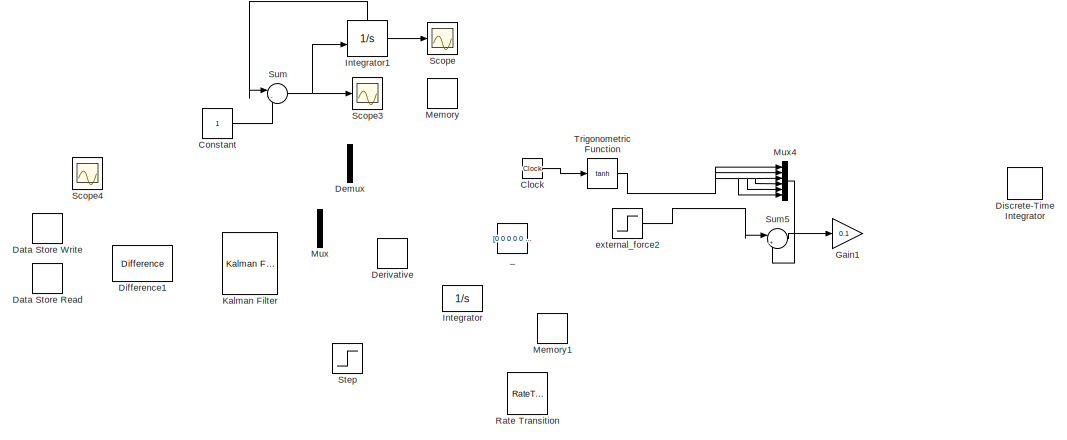
[diagram: root canvas - part 1/3, top right region]
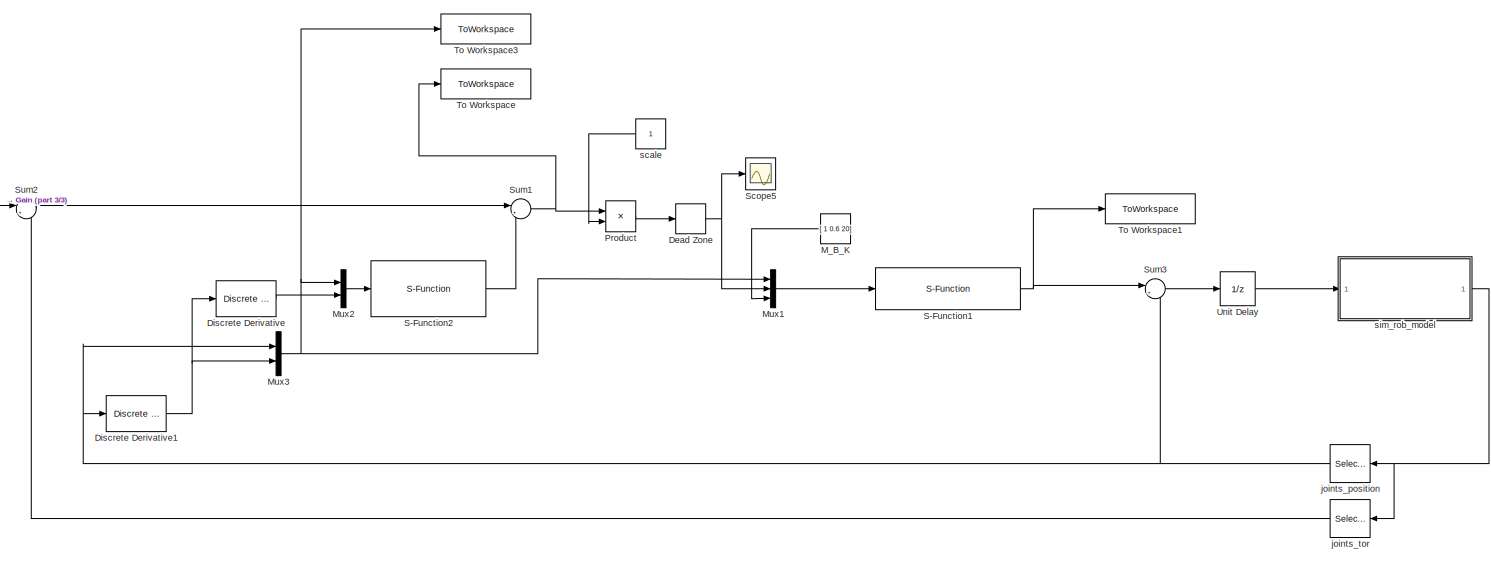
[diagram: root canvas - part 2/3, full width, bottom band]
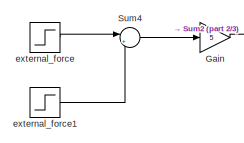
[diagram: root canvas - part 3/3, bottom left region]
MODEL slx_a19a26d402d2
KIND model
CONFIG AbsTol = auto
CONFIG EnableMultiTasking = off
CONFIG FixedStep = 0.001
CONFIG MaxStep = auto
CONFIG MinStep = auto
CONFIG RelTol = 1e-3
CONFIG SampleTimeConstraint = Unconstrained
CONFIG SolverName = FixedStepAuto
CONFIG StartTime = 0.0
CONFIG StopTime = 10
BLOCK [Clock] Clock
  Commented = on
BLOCK [Constant] Constant
  Commented = on
BLOCK [DataStoreRead] Data Store Read
  Commented = on
  Ports = [0, 1]
BLOCK [DataStoreWrite] Data Store Write
  Commented = on
  Ports = [1]
BLOCK [DeadZone] Dead Zone
  LowerValue = -2.5
  UpperValue = 2.5
BLOCK [Demux] Demux
  Commented = on
  Outputs = 2
  Ports = [1, 2]
BLOCK [Derivative] Derivative
  Commented = on
BLOCK [Reference] Difference1  REF=simulink/Discrete/Difference
  Commented = on
  Ports = [1, 1]
  SourceBlock = simulink/Discrete/Difference
  SourceProductBaseCode = SL
  SourceType = Difference
BLOCK [Reference] Discrete Derivative  REF=simulink/Discrete/Discrete Derivative
  Ports = [1, 1]
  SourceBlock = simulink/Discrete/Discrete Derivative
  SourceProductBaseCode = SL
  SourceType = Discrete Derivative
BLOCK [Reference] Discrete Derivative1  REF=simulink/Discrete/Discrete Derivative
  Ports = [1, 1]
  SourceBlock = simulink/Discrete/Discrete Derivative
  SourceProductBaseCode = SL
  SourceType = Discrete Derivative
BLOCK [DiscreteIntegrator] Discrete-Time Integrator
  Commented = on
  ICPrevOutput = DiscIntNeverNeededParam
  ICPrevScaledInput = DiscIntNeverNeededParam
  IntegratorMethod = Integration: Backward Euler
  Ports = [1, 1]
  SampleTime = -1
BLOCK [Gain] Gain
  Gain = 5
BLOCK [Gain] Gain1
  Commented = on
  Gain = 0.1
BLOCK [Integrator] Integrator
  Commented = on
  Ports = [1, 1]
BLOCK [Integrator] Integrator1
  Commented = on
  ExternalReset = falling
  Ports = [2, 1, 0, 0, 1]
  ShowStatePort = on
BLOCK [Reference] Kalman Filter  REF=ctrlSharedLib/Kalman Filter
  Commented = on
  Ports = [2, 1]
  SourceBlock = ctrlSharedLib/Kalman Filter
  SourceProductBaseCode = CT,ID
  SourceType = ctrlKalmanFilter
BLOCK [Constant] M_B_K
  Value = [ 1 0.6 20]
BLOCK [Memory] Memory
  Commented = on
BLOCK [Memory] Memory1
  Commented = on
  InitialCondition = [0 0 0 0 0 0]
BLOCK [Mux] Mux
  Commented = on
  DisplayOption = bar
  Inputs = 2
  Ports = [2, 1]
BLOCK [Mux] Mux1
  DisplayOption = bar
  Inputs = 3
  Ports = [3, 1]
BLOCK [Mux] Mux2
  DisplayOption = bar
  Inputs = 2
  Ports = [2, 1]
BLOCK [Mux] Mux3
  DisplayOption = bar
  Inputs = 2
  Ports = [2, 1]
BLOCK [Mux] Mux4
  Commented = on
  DisplayOption = bar
  Inputs = 6
  Ports = [6, 1]
BLOCK [Product] Product
  Ports = [2, 1]
BLOCK [RateTransition] Rate Transition
  Commented = on
  OutPortSampleTime = 1
BLOCK [S-Function] S-Function1
  EnableBusSupport = off
  FunctionName = compute_admittance_cmd
  Ports = [1, 1]
  SFcnIsStateOwnerBlock = off
  SFunctionDeploymentMode = off
BLOCK [S-Function] S-Function2
  EnableBusSupport = off
  FunctionName = dynamic_feedforward
  Ports = [1, 1]
  SFcnIsStateOwnerBlock = off
  SFunctionDeploymentMode = off
BLOCK [Scope] Scope
  Commented = on
  Floating = off
  NumInputPorts = 1
  Ports = [1]
  ScopeSpecificationString = Simulink.scopes.TimeScopeBlockCfg('CurrentConfiguration', extmgr.ConfigurationSet(extmgr.Configuration('Core','General UI',true),extmgr.Configuration('Core','Source UI',true),extmgr.Configuration('Sources','WiredSimulink',true),extmgr.Configuration('Visuals','Time Domain',true,'SerializedDisplays',{struct('MinYLimReal','-0.12497','MaxYLimReal','1.12475','YLabelReal','','MinYLimMag','0.00000','MaxY...<+1396ch>
BLOCK [Scope] Scope3
  Commented = on
  Floating = off
  NumInputPorts = 1
  Ports = [1]
  ScopeSpecificationString = Simulink.scopes.TimeScopeBlockCfg('CurrentConfiguration', extmgr.ConfigurationSet(extmgr.Configuration('Core','General UI',true),extmgr.Configuration('Core','Source UI',true),extmgr.Configuration('Sources','WiredSimulink',true,'DataLoggingVariableName','ScopeData3'),extmgr.Configuration('Visuals','Time Domain',true,'SerializedDisplays',{struct('MinYLimReal','-0.12588','MaxYLimReal','1.1251','YLabe...<+1423ch>
BLOCK [Scope] Scope4
  Commented = on
  Floating = off
  NumInputPorts = 1
  Ports = [1]
  ScopeSpecificationString = Simulink.scopes.TimeScopeBlockCfg('CurrentConfiguration', extmgr.ConfigurationSet(extmgr.Configuration('Core','General UI',true),extmgr.Configuration('Core','Source UI',true),extmgr.Configuration('Sources','WiredSimulink',true,'DataLoggingVariableName','ScopeData1'),extmgr.Configuration('Visuals','Time Domain',true,'SerializedDisplays',{struct('MinYLimReal','-4.89827','MaxYLimReal','41.5977','YLab...<+1605ch>
BLOCK [Scope] Scope5
  Floating = off
  NumInputPorts = 1
  Ports = [1]
  ScopeSpecificationString = Simulink.scopes.TimeScopeBlockCfg('CurrentConfiguration', extmgr.ConfigurationSet(extmgr.Configuration('Core','General UI',true),extmgr.Configuration('Core','Source UI',true),extmgr.Configuration('Sources','WiredSimulink',true,'DataLoggingVariableName','ScopeData1'),extmgr.Configuration('Visuals','Time Domain',true,'SerializedDisplays',{struct('MinYLimReal','-0.0125','MaxYLimReal','0.1125','YLabel...<+1894ch>
BLOCK [Step] Step
  Commented = on
  SampleTime = 0
BLOCK [Sum] Sum
  Commented = on
  Inputs = |-+
  Ports = [2, 1]
BLOCK [Sum] Sum1
  Inputs = |+-
  Ports = [2, 1]
BLOCK [Sum] Sum2
  Inputs = |++
  Ports = [2, 1]
BLOCK [Sum] Sum3
  Inputs = |++
  Ports = [2, 1]
BLOCK [Sum] Sum4
  Inputs = |+-
  Ports = [2, 1]
BLOCK [Sum] Sum5
  Commented = on
  Inputs = |++
  Ports = [2, 1]
BLOCK [ToWorkspace] To Workspace
  MaxDataPoints = inf
  Ports = [1]
  SampleTime = -1
  VariableName = ext_force
BLOCK [ToWorkspace] To Workspace1
  MaxDataPoints = inf
  Ports = [1]
  SampleTime = -1
  VariableName = cmd
BLOCK [ToWorkspace] To Workspace3
  MaxDataPoints = inf
  Ports = [1]
  SampleTime = -1
  VariableName = position_velocity
BLOCK [Trigonometry] Trigonometric Function
  Commented = on
  Operator = tanh
  Ports = [1, 1]
BLOCK [UnitDelay] Unit Delay
  HasFrameUpgradeWarning = on
  InitialCondition = [0 0 0 0 0 0]
  SampleTime = -1
BLOCK [Constant] _
  Commented = on
  Value = [0 0 0 0 0 0]
BLOCK [Step] external_force
  After = [1  -1 -1 1 1 1]
  Before = [0 0 0 0 0 0]
  SampleTime = 0.001
BLOCK [Step] external_force1
  After = [1  -1 -1 1 1 1]
  Before = [0 0 0 0 0 0]
  SampleTime = 0.001
  Time = 3
BLOCK [Step] external_force2
  After = [1 1 1 1 1 1]
  Before = [0 0 0 0 0 0]
  Commented = on
  SampleTime = 0.001
BLOCK [Selector] joints_position
  IndexOptions = Index vector (dialog)
  Indices = [1:6]
  InputPortWidth = 12
  OutputSizes = 1
  Ports = [1, 1]
BLOCK [Selector] joints_tor
  IndexOptions = Index vector (dialog)
  Indices = [7:12]
  InputPortWidth = 12
  OutputSizes = 1
  Ports = [1, 1]
BLOCK [Constant] scale
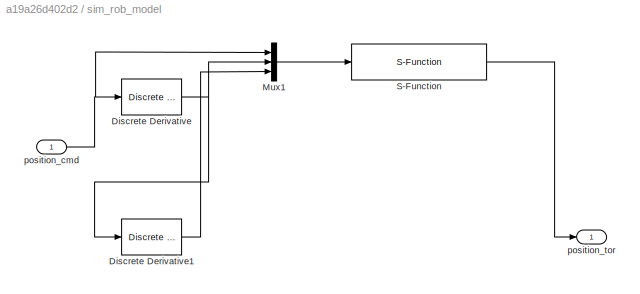
BLOCK [SubSystem] sim_rob_model
  Ports = [1, 1]
  RequestExecContextInheritance = off
BLOCK [Reference] sim_rob_model/Discrete Derivative  REF=simulink/Discrete/Discrete Derivative
  Ports = [1, 1]
  SourceBlock = simulink/Discrete/Discrete Derivative
  SourceProductBaseCode = SL
  SourceType = Discrete Derivative
BLOCK [Reference] sim_rob_model/Discrete Derivative1  REF=simulink/Discrete/Discrete Derivative
  Ports = [1, 1]
  SourceBlock = simulink/Discrete/Discrete Derivative
  SourceProductBaseCode = SL
  SourceType = Discrete Derivative
BLOCK [Mux] sim_rob_model/Mux1
  DisplayOption = bar
  Inputs = 3
  Ports = [3, 1]
BLOCK [S-Function] sim_rob_model/S-Function
  EnableBusSupport = off
  FunctionName = process_rob_model
  Ports = [1, 1]
  SFcnIsStateOwnerBlock = off
  SFunctionDeploymentMode = off
BLOCK [Inport] sim_rob_model/position_cmd
BLOCK [Outport] sim_rob_model/position_tor
  IconDisplay = Signal name
LINE Clock:1 -> Trigonometric Function:1
LINE Constant:1 -> Sum:2
NET Dead Zone:1 -> Mux1:2, Scope5:1
NET Discrete Derivative1:1 -> Discrete Derivative:1, Mux3:2
LINE Discrete Derivative:1 -> Mux2:2
LINE Gain:1 -> Sum2:1
LINE Integrator1:1 -> Scope:1
LINE Integrator1:state -> Sum:1
LINE M_B_K:1 -> Mux1:3
LINE Mux1:1 -> S-Function1:1
LINE Mux2:1 -> S-Function2:1
NET Mux3:1 -> Mux1:1, Mux2:1, To Workspace3:1
LINE Mux4:1 -> Sum5:2
LINE Product:1 -> Dead Zone:1
NET S-Function1:1 -> Sum3:1, To Workspace1:1
LINE S-Function2:1 -> Sum1:2
NET Sum1:1 -> Product:1, To Workspace:1
LINE Sum2:1 -> Sum1:1
LINE Sum3:1 -> Unit Delay:1
LINE Sum4:1 -> Gain:1
LINE Sum5:1 -> Gain1:1
NET Sum:1 -> Integrator1:2, Scope3:1
NET Trigonometric Function:1 -> Mux4:1, Mux4:2, Mux4:3, Mux4:4, Mux4:5, Mux4:6
LINE Unit Delay:1 -> sim_rob_model:1
LINE external_force1:1 -> Sum4:2
LINE external_force2:1 -> Sum5:1
LINE external_force:1 -> Sum4:1
NET joints_position:1 -> Discrete Derivative1:1, Mux3:1, Sum3:2
LINE joints_tor:1 -> Sum2:2
LINE scale:1 -> Product:2
LINE sim_rob_model/Discrete Derivative1:1 -> sim_rob_model/Mux1:3
NET sim_rob_model/Discrete Derivative:1 -> sim_rob_model/Discrete Derivative1:1, sim_rob_model/Mux1:2
LINE sim_rob_model/Mux1:1 -> sim_rob_model/S-Function:1
LINE sim_rob_model/S-Function:1 -> sim_rob_model/position_tor:1
NET sim_rob_model/position_cmd:1 -> sim_rob_model/Discrete Derivative:1, sim_rob_model/Mux1:1
NET sim_rob_model:1 -> joints_position:1, joints_tor:1
note: NET lines group one-source signal fan-out (src -> all destinations, sorted); 1:1 wires keep LINE
